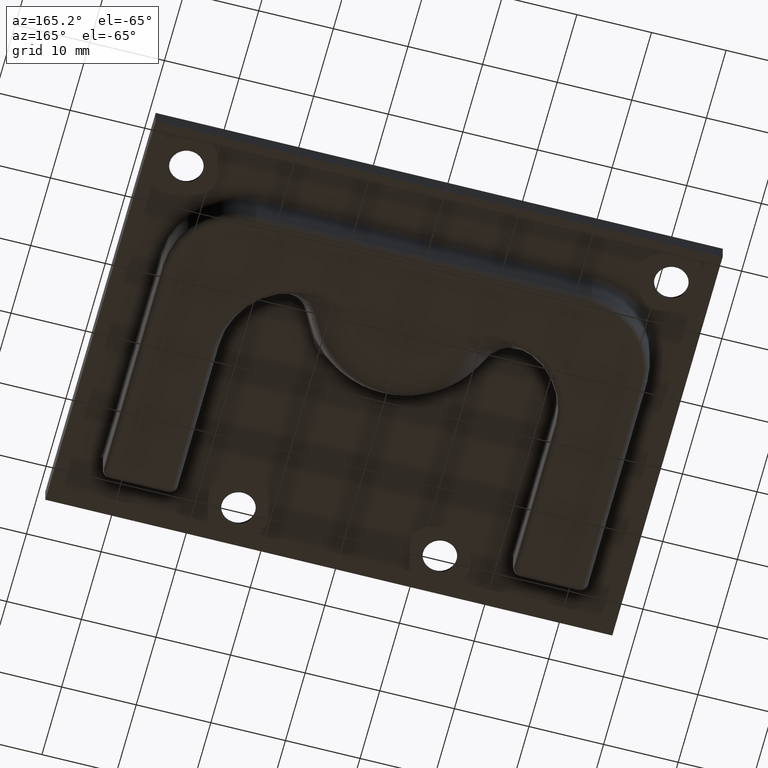
[diagram: clean part render]
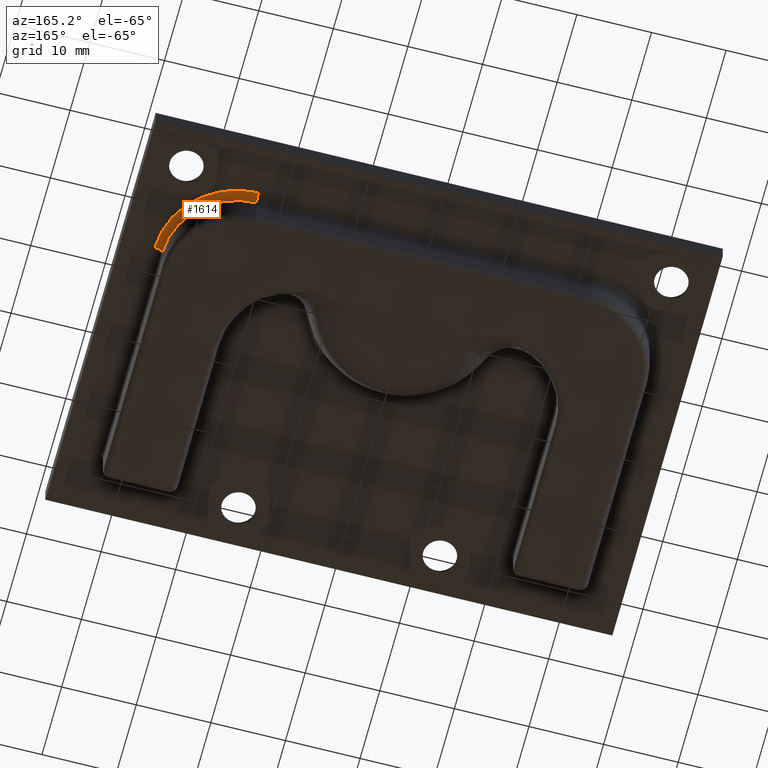
[diagram: same view with one face highlighted and labeled with its STEP entity id]
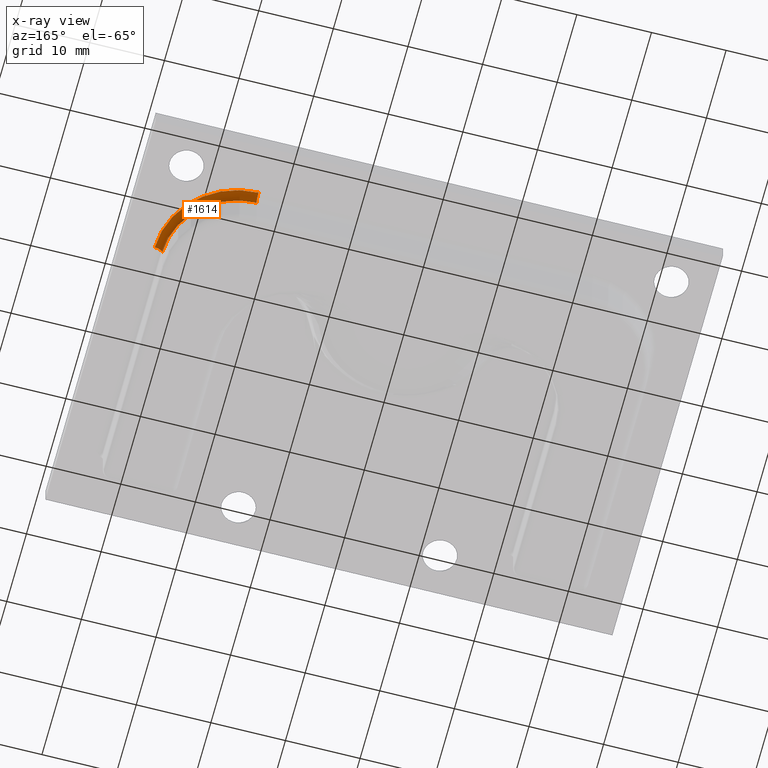
[diagram: x-ray of the same camera — body ghosted, the highlighted face saturated]
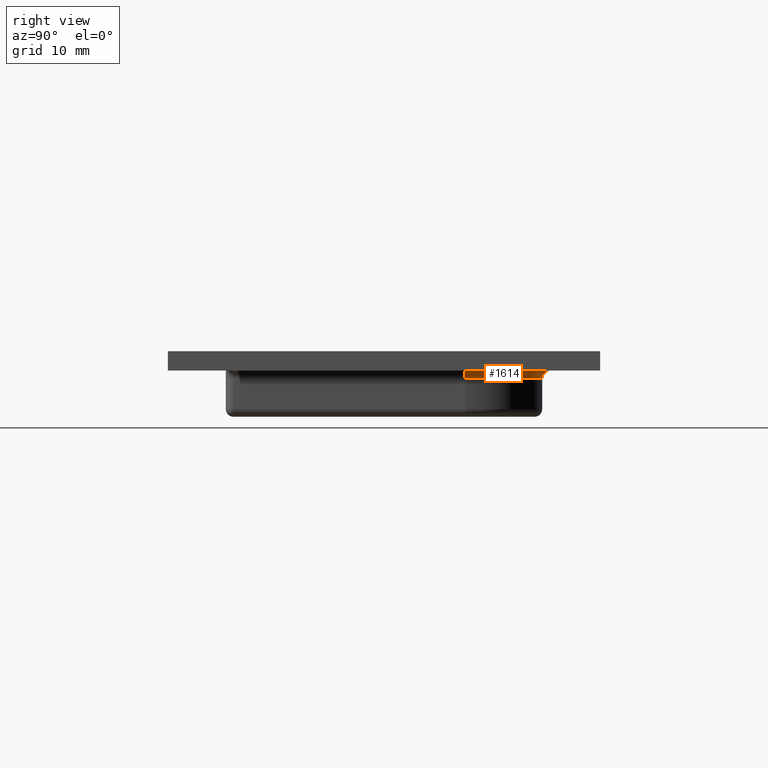
[diagram: same view with one face highlighted and labeled with its STEP entity id]
A machine part, auxiliary view. The second image highlights one B-rep face of the part: STEP entity #1614.
The next image is the same camera in x-ray: the body ghosted, the highlighted face saturated — about 0% of this face is hidden behind the body in this view.
A second angle (right view) of the same face is appended — the face is thin or edge-on in the first view.
In plain terms, the highlighted toroidal blend (fillet) surface has major radius 11 mm and minor (blend) radius 1 mm.
Its self-contained STEP definition (entity closure, byte-faithful):
#306=TOROIDAL_SURFACE('',#1786,11.,1.);
#436=FACE_OUTER_BOUND('',#553,.T.);
#553=EDGE_LOOP('',(#1301,#1302,#1303,#1304));
#638=CIRCLE('',#1709,11.);
#678=CIRCLE('',#1775,1.);
#679=CIRCLE('',#1778,10.);
#682=CIRCLE('',#1787,1.);
#748=VERTEX_POINT('',#2843);
#749=VERTEX_POINT('',#2845);
#788=VERTEX_POINT('',#2989);
#789=VERTEX_POINT('',#2995);
#905=EDGE_CURVE('',#749,#748,#638,.T.);
#975=EDGE_CURVE('',#788,#748,#678,.T.);
#978=EDGE_CURVE('',#788,#789,#679,.T.);
#985=EDGE_CURVE('',#789,#749,#682,.T.);
#1301=ORIENTED_EDGE('',*,*,#985,.T.);
#1302=ORIENTED_EDGE('',*,*,#905,.T.);
#1303=ORIENTED_EDGE('',*,*,#975,.F.);
#1304=ORIENTED_EDGE('',*,*,#978,.T.);
#1614=ADVANCED_FACE('',(#436),#306,.F.);
#1709=AXIS2_PLACEMENT_3D('',#2846,#1955,#1956);
#1775=AXIS2_PLACEMENT_3D('',#2991,#2115,#2116);
#1778=AXIS2_PLACEMENT_3D('',#2997,#2123,#2124);
#1786=AXIS2_PLACEMENT_3D('',#3011,#2143,#2144);
#1787=AXIS2_PLACEMENT_3D('',#3012,#2145,#2146);
#1955=DIRECTION('center_axis',(0.,0.,-1.));
#1956=DIRECTION('ref_axis',(0.707106781186547,0.707106781186548,0.));
#2115=DIRECTION('center_axis',(0.,1.,0.));
#2116=DIRECTION('ref_axis',(-1.,0.,0.));
#2123=DIRECTION('center_axis',(0.,0.,1.));
#2124=DIRECTION('ref_axis',(0.707106781186547,0.707106781186548,0.));
#2143=DIRECTION('center_axis',(0.,0.,1.));
#2144=DIRECTION('ref_axis',(1.,0.,0.));
#2145=DIRECTION('center_axis',(-1.,0.,0.));
#2146=DIRECTION('ref_axis',(0.,-1.,0.));
#2843=CARTESIAN_POINT('',(33.5,10.5,0.));
#2845=CARTESIAN_POINT('',(22.5,21.5,0.));
#2846=CARTESIAN_POINT('Origin',(22.5,10.5,0.));
#2989=CARTESIAN_POINT('',(32.5,10.5,-1.));
#2991=CARTESIAN_POINT('Origin',(33.5,10.5,-1.));
#2995=CARTESIAN_POINT('',(22.5,20.5,-1.));
#2997=CARTESIAN_POINT('Origin',(22.5,10.5,-1.));
#3011=CARTESIAN_POINT('Origin',(22.5,10.5,-1.));
#3012=CARTESIAN_POINT('Origin',(22.5,21.5,-1.));